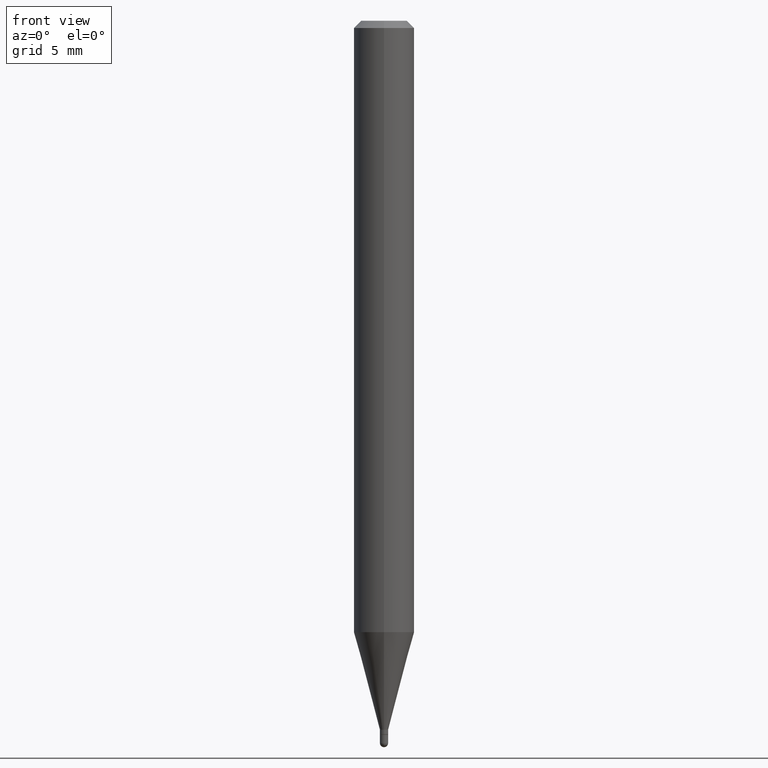
[diagram: clean part render]
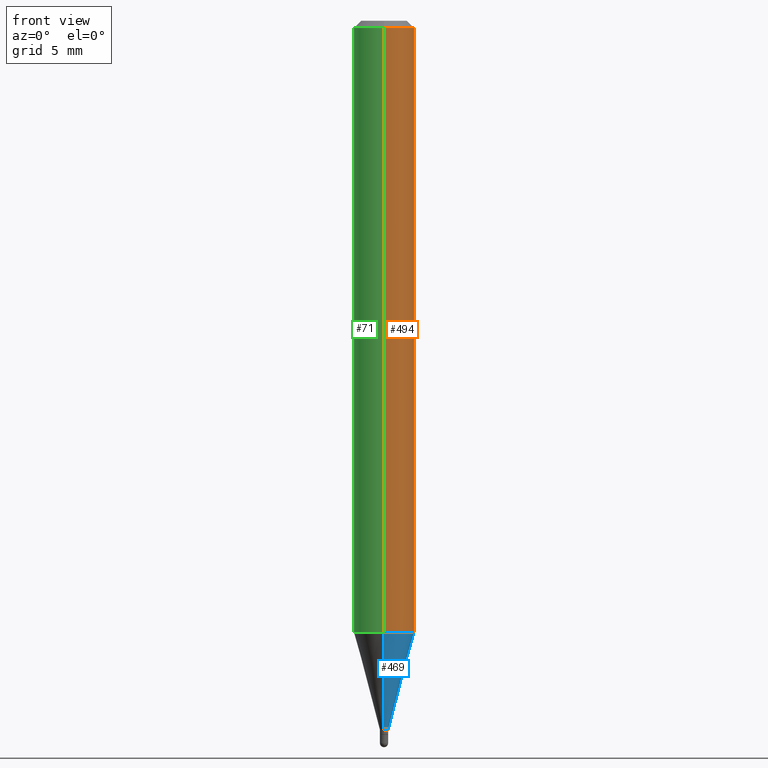
[diagram: same view with three faces highlighted in distinct colors, each labeled with its STEP entity id]
A machine part, front view with three faces highlighted in distinct colors.
Their STEP definitions:

[orange] entity #494 — the highlighted cylindrical surface (edge-blend (fillet) strip) has radius 1.5875 mm, axis along (-0, 0, 1).
#2 = FACE_OUTER_BOUND ( 'NONE', #91, .T. ) ;
#5 = ORIENTED_EDGE ( 'NONE', *, *, #302, .F. ) ;
#18 = DIRECTION ( 'NONE',  ( -2.445473166795262930E-29, 3.491475094201254454E-15, 1.000000000000000000 ) ) ;
#20 = DIRECTION ( 'NONE',  ( -2.445473166795262930E-29, 3.491475094201254059E-15, 1.000000000000000000 ) ) ;
#21 = EDGE_CURVE ( 'NONE', #510, #289, #379, .T. ) ;
#57 = CARTESIAN_POINT ( 'NONE',  ( -4.364351673553916201E-16, -0.06250000000000000000, 2.182171933875784034E-16 ) ) ;
#85 = DIRECTION ( 'NONE',  ( -6.982962677686265922E-15, -1.000000000000000000, 4.370956789862821150E-15 ) ) ;
#91 = EDGE_LOOP ( 'NONE', ( #465, #429, #197, #5 ) ) ;
#120 = DIRECTION ( 'NONE',  ( -6.982962677686265922E-15, -1.000000000000000000, 3.491475094201254454E-15 ) ) ;
#138 = VERTEX_POINT ( 'NONE', #270 ) ;
#159 = CYLINDRICAL_SURFACE ( 'NONE', #467, 0.06250000000000000000 ) ;
#190 = VERTEX_POINT ( 'NONE', #281 ) ;
#197 = ORIENTED_EDGE ( 'NONE', *, *, #273, .F. ) ;
#270 = CARTESIAN_POINT ( 'NONE',  ( -4.364351673553912750E-16, -0.06250000000000005551, -0.01499999999999979128 ) ) ;
#273 = EDGE_CURVE ( 'NONE', #138, #190, #274, .T. ) ;
#274 = CIRCLE ( 'NONE', #406, 0.06250000000000000000 ) ;
#280 = DIRECTION ( 'NONE',  ( -2.445473166795262930E-29, 3.491475094201254454E-15, 1.000000000000000000 ) ) ;
#281 = CARTESIAN_POINT ( 'NONE',  ( 4.440892098500935790E-16, 0.06249999999999995143, -0.01500000000000022669 ) ) ;
#289 = VERTEX_POINT ( 'NONE', #393 ) ;
#302 = EDGE_CURVE ( 'NONE', #510, #138, #404, .T. ) ;
#321 = DIRECTION ( 'NONE',  ( -6.982962677686265922E-15, -1.000000000000000000, 3.483106191921935554E-15 ) ) ;
#363 = CARTESIAN_POINT ( 'NONE',  ( 3.668209750192896848E-31, -5.237212641301884589E-17, -0.01500000000000000812 ) ) ;
#368 = DIRECTION ( 'NONE',  ( -2.445473166795262930E-29, 3.491475094201254059E-15, 1.000000000000000000 ) ) ;
#372 = CARTESIAN_POINT ( 'NONE',  ( 4.440892098500625669E-16, 0.06250000000000000000, -2.182171933875784034E-16 ) ) ;
#377 = LINE ( 'NONE', #372, #395 ) ;
#379 = CIRCLE ( 'NONE', #422, 0.06250000000000000000 ) ;
#385 = EDGE_CURVE ( 'NONE', #289, #190, #377, .T. ) ;
#393 = CARTESIAN_POINT ( 'NONE',  ( 4.440892098500932831E-16, 0.06249999999999557992, -1.262469256391281158 ) ) ;
#394 = DIRECTION ( 'NONE',  ( -2.445473166795262930E-29, 3.491475094201254454E-15, 1.000000000000000000 ) ) ;
#395 = VECTOR ( 'NONE', #20, 39.37007874015748143 ) ;
#402 = CARTESIAN_POINT ( 'NONE',  ( -4.364351673553606573E-16, -0.06250000000000439926, -1.262469256391280714 ) ) ;
#404 = LINE ( 'NONE', #57, #476 ) ;
#406 = AXIS2_PLACEMENT_3D ( 'NONE', #363, #18, #321 ) ;
#422 = AXIS2_PLACEMENT_3D ( 'NONE', #483, #280, #85 ) ;
#429 = ORIENTED_EDGE ( 'NONE', *, *, #385, .T. ) ;
#465 = ORIENTED_EDGE ( 'NONE', *, *, #21, .T. ) ;
#467 = AXIS2_PLACEMENT_3D ( 'NONE', #473, #394, #120 ) ;
#473 = CARTESIAN_POINT ( 'NONE',  ( 0.000000000000000000, 0.000000000000000000, 0.000000000000000000 ) ) ;
#476 = VECTOR ( 'NONE', #368, 39.37007874015748143 ) ;
#483 = CARTESIAN_POINT ( 'NONE',  ( 3.087334690408846546E-29, -4.407879965884935639E-15, -1.262469256391280936 ) ) ;
#494 = ADVANCED_FACE ( 'NONE', ( #2 ), #159, .T. ) ;
#510 = VERTEX_POINT ( 'NONE', #402 ) ;

[blue] entity #469 — the highlighted conical surface has half-angle 15 deg.
#21 = EDGE_CURVE ( 'NONE', #510, #289, #379, .T. ) ;
#32 = EDGE_CURVE ( 'NONE', #49, #510, #325, .T. ) ;
#49 = VERTEX_POINT ( 'NONE', #450 ) ;
#50 = DIRECTION ( 'NONE',  ( -2.445473166795262930E-29, 3.491475094201254454E-15, 1.000000000000000000 ) ) ;
#54 = CARTESIAN_POINT ( 'NONE',  ( 3.580172716188264885E-29, -5.111519537910637170E-15, -1.463999999999999968 ) ) ;
#56 = CARTESIAN_POINT ( 'NONE',  ( -5.935518276029691682E-17, -0.008500000000005034778, -1.463999999999999968 ) ) ;
#75 = ORIENTED_EDGE ( 'NONE', *, *, #32, .F. ) ;
#76 = LINE ( 'NONE', #88, #288 ) ;
#77 = CIRCLE ( 'NONE', #367, 0.008499999999999922548 ) ;
#85 = DIRECTION ( 'NONE',  ( -6.982962677686265922E-15, -1.000000000000000000, 4.370956789862821150E-15 ) ) ;
#88 = CARTESIAN_POINT ( 'NONE',  ( 6.039613253964376003E-17, 0.008499999999994812053, -1.463999999999999968 ) ) ;
#96 = ORIENTED_EDGE ( 'NONE', *, *, #474, .T. ) ;
#98 = VECTOR ( 'NONE', #171, 39.37007874015749564 ) ;
#171 = DIRECTION ( 'NONE',  ( -1.807323732225328562E-15, -0.2588190451025179639, 0.9659258262890689783 ) ) ;
#172 = ORIENTED_EDGE ( 'NONE', *, *, #21, .F. ) ;
#202 = CARTESIAN_POINT ( 'NONE',  ( 3.580172716188264885E-29, -5.111519537910637170E-15, -1.463999999999999968 ) ) ;
#232 = DIRECTION ( 'NONE',  ( 1.839019923739599526E-15, 0.2588190451025248473, 0.9659258262890673130 ) ) ;
#235 = DIRECTION ( 'NONE',  ( -6.982962677686266711E-15, -1.000000000000000000, 0.000000000000000000 ) ) ;
#236 = DIRECTION ( 'NONE',  ( -6.982962677686266711E-15, -1.000000000000000000, 0.000000000000000000 ) ) ;
#248 = CARTESIAN_POINT ( 'NONE',  ( 2.522426711948687250E-16, 0.008499999999994812053, -1.463999999999999968 ) ) ;
#265 = EDGE_CURVE ( 'NONE', #49, #294, #77, .T. ) ;
#269 = EDGE_LOOP ( 'NONE', ( #488, #96, #172, #75 ) ) ;
#280 = DIRECTION ( 'NONE',  ( -2.445473166795262930E-29, 3.491475094201254454E-15, 1.000000000000000000 ) ) ;
#288 = VECTOR ( 'NONE', #232, 39.37007874015747433 ) ;
#289 = VERTEX_POINT ( 'NONE', #393 ) ;
#294 = VERTEX_POINT ( 'NONE', #248 ) ;
#325 = LINE ( 'NONE', #56, #98 ) ;
#326 = DIRECTION ( 'NONE',  ( -2.445473166795262930E-29, 3.491475094201254454E-15, 1.000000000000000000 ) ) ;
#367 = AXIS2_PLACEMENT_3D ( 'NONE', #54, #50, #235 ) ;
#379 = CIRCLE ( 'NONE', #422, 0.06250000000000000000 ) ;
#380 = AXIS2_PLACEMENT_3D ( 'NONE', #202, #326, #236 ) ;
#393 = CARTESIAN_POINT ( 'NONE',  ( 4.440892098500932831E-16, 0.06249999999999557992, -1.262469256391281158 ) ) ;
#402 = CARTESIAN_POINT ( 'NONE',  ( -4.364351673553606573E-16, -0.06250000000000439926, -1.262469256391280714 ) ) ;
#422 = AXIS2_PLACEMENT_3D ( 'NONE', #483, #280, #85 ) ;
#431 = CONICAL_SURFACE ( 'NONE', #380, 0.008499999999999922548, 0.2617993877991501295 ) ;
#450 = CARTESIAN_POINT ( 'NONE',  ( -5.935518276029691682E-17, -0.008500000000005034778, -1.463999999999999968 ) ) ;
#469 = ADVANCED_FACE ( 'NONE', ( #479 ), #431, .T. ) ;
#474 = EDGE_CURVE ( 'NONE', #294, #289, #76, .T. ) ;
#479 = FACE_OUTER_BOUND ( 'NONE', #269, .T. ) ;
#483 = CARTESIAN_POINT ( 'NONE',  ( 3.087334690408846546E-29, -4.407879965884935639E-15, -1.262469256391280936 ) ) ;
#488 = ORIENTED_EDGE ( 'NONE', *, *, #265, .T. ) ;
#510 = VERTEX_POINT ( 'NONE', #402 ) ;

[green] entity #71 — the highlighted cylindrical surface (edge-blend (fillet) strip) has radius 1.5875 mm, axis along (-0, 0, 1).
#8 = DIRECTION ( 'NONE',  ( -6.982962677686265922E-15, -1.000000000000000000, 4.370956789862821150E-15 ) ) ;
#9 = CYLINDRICAL_SURFACE ( 'NONE', #16, 0.06250000000000000000 ) ;
#16 = AXIS2_PLACEMENT_3D ( 'NONE', #130, #284, #432 ) ;
#20 = DIRECTION ( 'NONE',  ( -2.445473166795262930E-29, 3.491475094201254059E-15, 1.000000000000000000 ) ) ;
#48 = AXIS2_PLACEMENT_3D ( 'NONE', #283, #129, #8 ) ;
#57 = CARTESIAN_POINT ( 'NONE',  ( -4.364351673553916201E-16, -0.06250000000000000000, 2.182171933875784034E-16 ) ) ;
#59 = CIRCLE ( 'NONE', #48, 0.06250000000000000000 ) ;
#71 = ADVANCED_FACE ( 'NONE', ( #79 ), #9, .T. ) ;
#74 = ORIENTED_EDGE ( 'NONE', *, *, #385, .F. ) ;
#79 = FACE_OUTER_BOUND ( 'NONE', #410, .T. ) ;
#94 = DIRECTION ( 'NONE',  ( -6.982962677686265922E-15, -1.000000000000000000, 3.483106191921935554E-15 ) ) ;
#129 = DIRECTION ( 'NONE',  ( -2.445473166795262930E-29, 3.491475094201254454E-15, 1.000000000000000000 ) ) ;
#130 = CARTESIAN_POINT ( 'NONE',  ( 0.000000000000000000, 0.000000000000000000, 0.000000000000000000 ) ) ;
#135 = DIRECTION ( 'NONE',  ( -2.445473166795262930E-29, 3.491475094201254454E-15, 1.000000000000000000 ) ) ;
#138 = VERTEX_POINT ( 'NONE', #270 ) ;
#150 = ORIENTED_EDGE ( 'NONE', *, *, #428, .T. ) ;
#156 = ORIENTED_EDGE ( 'NONE', *, *, #293, .F. ) ;
#168 = CARTESIAN_POINT ( 'NONE',  ( 3.668209750192896848E-31, -5.237212641301884589E-17, -0.01500000000000000812 ) ) ;
#190 = VERTEX_POINT ( 'NONE', #281 ) ;
#270 = CARTESIAN_POINT ( 'NONE',  ( -4.364351673553912750E-16, -0.06250000000000005551, -0.01499999999999979128 ) ) ;
#281 = CARTESIAN_POINT ( 'NONE',  ( 4.440892098500935790E-16, 0.06249999999999995143, -0.01500000000000022669 ) ) ;
#283 = CARTESIAN_POINT ( 'NONE',  ( 3.087334690408846546E-29, -4.407879965884935639E-15, -1.262469256391280936 ) ) ;
#284 = DIRECTION ( 'NONE',  ( -2.445473166795262930E-29, 3.491475094201254454E-15, 1.000000000000000000 ) ) ;
#289 = VERTEX_POINT ( 'NONE', #393 ) ;
#293 = EDGE_CURVE ( 'NONE', #190, #138, #369, .T. ) ;
#302 = EDGE_CURVE ( 'NONE', #510, #138, #404, .T. ) ;
#318 = AXIS2_PLACEMENT_3D ( 'NONE', #168, #135, #94 ) ;
#368 = DIRECTION ( 'NONE',  ( -2.445473166795262930E-29, 3.491475094201254059E-15, 1.000000000000000000 ) ) ;
#369 = CIRCLE ( 'NONE', #318, 0.06250000000000000000 ) ;
#372 = CARTESIAN_POINT ( 'NONE',  ( 4.440892098500625669E-16, 0.06250000000000000000, -2.182171933875784034E-16 ) ) ;
#377 = LINE ( 'NONE', #372, #395 ) ;
#385 = EDGE_CURVE ( 'NONE', #289, #190, #377, .T. ) ;
#393 = CARTESIAN_POINT ( 'NONE',  ( 4.440892098500932831E-16, 0.06249999999999557992, -1.262469256391281158 ) ) ;
#395 = VECTOR ( 'NONE', #20, 39.37007874015748143 ) ;
#402 = CARTESIAN_POINT ( 'NONE',  ( -4.364351673553606573E-16, -0.06250000000000439926, -1.262469256391280714 ) ) ;
#404 = LINE ( 'NONE', #57, #476 ) ;
#410 = EDGE_LOOP ( 'NONE', ( #74, #150, #438, #156 ) ) ;
#428 = EDGE_CURVE ( 'NONE', #289, #510, #59, .T. ) ;
#432 = DIRECTION ( 'NONE',  ( -6.982962677686265922E-15, -1.000000000000000000, 3.491475094201254454E-15 ) ) ;
#438 = ORIENTED_EDGE ( 'NONE', *, *, #302, .T. ) ;
#476 = VECTOR ( 'NONE', #368, 39.37007874015748143 ) ;
#510 = VERTEX_POINT ( 'NONE', #402 ) ;